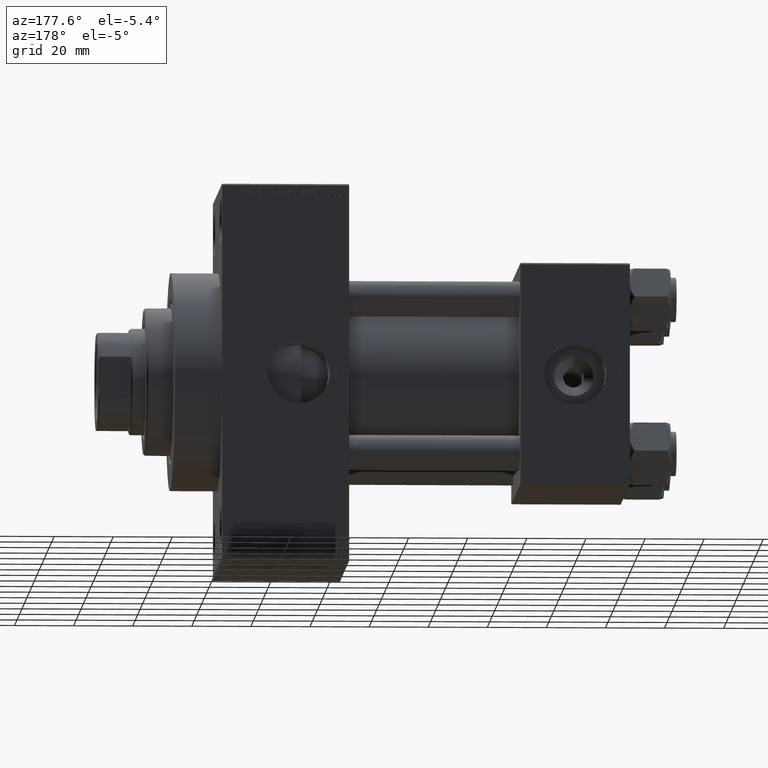
[diagram: clean part render]
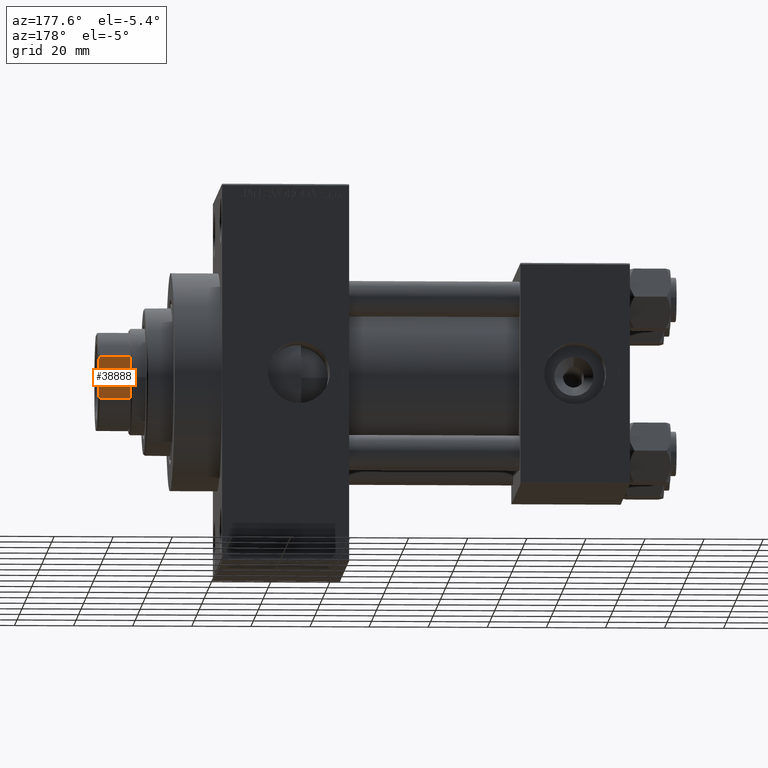
[diagram: same view with one face highlighted and labeled with its STEP entity id]
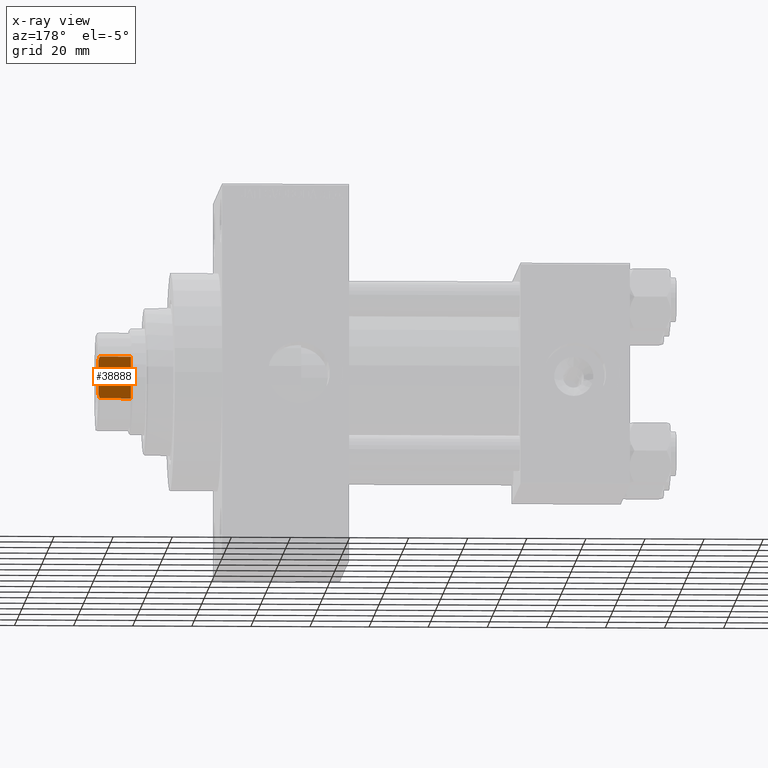
[diagram: x-ray of the same camera — body ghosted, the highlighted face saturated]
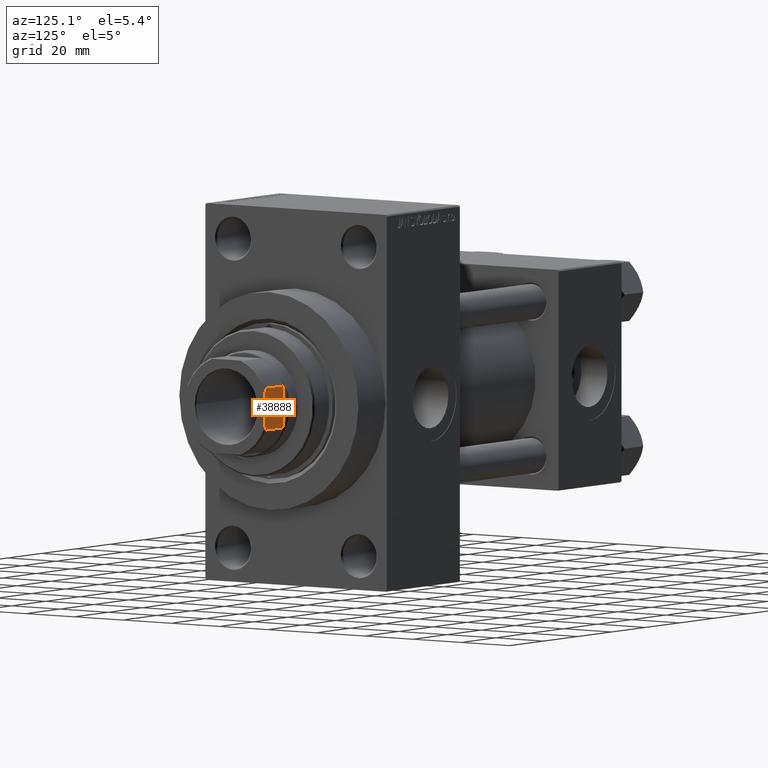
[diagram: same view with one face highlighted and labeled with its STEP entity id]
A machine part, auxiliary view. The second image highlights one B-rep face of the part: STEP entity #38888.
The next image is the same camera in x-ray: the body ghosted, the highlighted face saturated — about 0% of this face is hidden behind the body in this view.
A second angle (auxiliary view) of the same face is appended — the face is thin or edge-on in the first view.
In plain terms, the highlighted planar face has unit normal (0, -1, -0).
Its self-contained STEP definition (entity closure, byte-faithful):
#1277 = VERTEX_POINT ( 'NONE', #18591 ) ;
#1459 = CARTESIAN_POINT ( 'NONE',  ( -16.00000000000000000, -5.744562646538022399, 142.0000000000000284 ) ) ;
#1798 = ORIENTED_EDGE ( 'NONE', *, *, #37560, .T. ) ;
#2052 = ORIENTED_EDGE ( 'NONE', *, *, #43776, .F. ) ;
#2448 = AXIS2_PLACEMENT_3D ( 'NONE', #6797, #24186, #9145 ) ;
#2465 = VECTOR ( 'NONE', #22312, 1000.000000000000000 ) ;
#3297 = VECTOR ( 'NONE', #46433, 1000.000000000000000 ) ;
#3467 = CARTESIAN_POINT ( 'NONE',  ( -16.00000000000000000, 16.00000000000000000, 142.0000000000000284 ) ) ;
#5081 = LINE ( 'NONE', #27891, #3297 ) ;
#5808 = VERTEX_POINT ( 'NONE', #23599 ) ;
#6797 = CARTESIAN_POINT ( 'NONE',  ( -16.00000000000000000, 16.00000000000000000, 142.0000000000000284 ) ) ;
#7228 = EDGE_LOOP ( 'NONE', ( #31227, #7642, #2052, #1798, #41202, #20661 ) ) ;
#7642 = ORIENTED_EDGE ( 'NONE', *, *, #14118, .T. ) ;
#9145 = DIRECTION ( 'NONE',  ( -0.000000000000000000, 0.000000000000000000, -1.000000000000000000 ) ) ;
#10364 = VERTEX_POINT ( 'NONE', #16768 ) ;
#11036 = EDGE_CURVE ( 'NONE', #25616, #10364, #33369, .T. ) ;
#14118 = EDGE_CURVE ( 'NONE', #10364, #19118, #21025, .T. ) ;
#14556 = CARTESIAN_POINT ( 'NONE',  ( -16.00000000000000000, -7.088723439378919799, -0.001000000000001000089 ) ) ;
#16768 = CARTESIAN_POINT ( 'NONE',  ( -16.00000000000000000, -7.088723439378919799, 141.5000000000000284 ) ) ;
#17330 = DIRECTION ( 'NONE',  ( 0.000000000000000000, -1.000000000000000000, 0.000000000000000000 ) ) ;
#17766 = EDGE_CURVE ( 'NONE', #5808, #25616, #21576, .T. ) ;
#17767 = CARTESIAN_POINT ( 'NONE',  ( -16.00000000000000000, 6.645462757301157097, 141.6795515649600361 ) ) ;
#18591 = CARTESIAN_POINT ( 'NONE',  ( -16.00000000000000000, 5.744562646538085460, 142.0000000000000284 ) ) ;
#19118 = VERTEX_POINT ( 'NONE', #48539 ) ;
#19126 = VERTEX_POINT ( 'NONE', #29247 ) ;
#20661 = ORIENTED_EDGE ( 'NONE', *, *, #17766, .T. ) ;
#21025 = B_SPLINE_CURVE_WITH_KNOTS ( 'NONE', 3,
 ( #47069, #28023, #35814, #1459 ),
 .UNSPECIFIED., .F., .F.,
 ( 4, 4 ),
 ( 0.000000000000000000, 0.001434143729551075504 ),
 .UNSPECIFIED. ) ;
#21266 = CARTESIAN_POINT ( 'NONE',  ( -16.00000000000000000, 6.197659614356096469, 141.8468915343184165 ) ) ;
#21576 = LINE ( 'NONE', #40626, #37970 ) ;
#22312 = DIRECTION ( 'NONE',  ( -0.000000000000000000, -0.000000000000000000, 1.000000000000000000 ) ) ;
#23599 = CARTESIAN_POINT ( 'NONE',  ( -15.99999999999999645, 7.088723439378926905, 131.0000000000000284 ) ) ;
#24186 = DIRECTION ( 'NONE',  ( 1.000000000000000000, 0.000000000000000000, -0.000000000000000000 ) ) ;
#25616 = VERTEX_POINT ( 'NONE', #39383 ) ;
#26273 = DIRECTION ( 'NONE',  ( 0.000000000000000000, -1.000000000000000000, 0.000000000000000000 ) ) ;
#27891 = CARTESIAN_POINT ( 'NONE',  ( -15.99999999999999645, 7.088723439378923352, -0.001000000000001000089 ) ) ;
#28023 = CARTESIAN_POINT ( 'NONE',  ( -16.00000000000000000, -6.645462757301120682, 141.6795515649600077 ) ) ;
#29247 = CARTESIAN_POINT ( 'NONE',  ( -15.99999999999999645, 7.088723439378923352, 141.5000000000000284 ) ) ;
#31227 = ORIENTED_EDGE ( 'NONE', *, *, #11036, .T. ) ;
#32209 = FACE_OUTER_BOUND ( 'NONE', #7228, .T. ) ;
#32791 = B_SPLINE_CURVE_WITH_KNOTS ( 'NONE', 3,
 ( #36074, #21266, #17767, #33068 ),
 .UNSPECIFIED., .F., .F.,
 ( 4, 4 ),
 ( 8.673617379884035472E-19, 0.001434143729551021944 ),
 .UNSPECIFIED. ) ;
#33068 = CARTESIAN_POINT ( 'NONE',  ( -15.99999999999999645, 7.088723439378923352, 141.5000000000000284 ) ) ;
#33369 = LINE ( 'NONE', #14556, #2465 ) ;
#35814 = CARTESIAN_POINT ( 'NONE',  ( -16.00000000000000000, -6.197659614356052060, 141.8468915343184165 ) ) ;
#36074 = CARTESIAN_POINT ( 'NONE',  ( -16.00000000000000000, 5.744562646538085460, 142.0000000000000284 ) ) ;
#36828 = LINE ( 'NONE', #3467, #40106 ) ;
#37560 = EDGE_CURVE ( 'NONE', #1277, #19126, #32791, .T. ) ;
#37970 = VECTOR ( 'NONE', #17330, 1000.000000000000000 ) ;
#38888 = ADVANCED_FACE ( 'NONE', ( #32209 ), #43481, .F. ) ;
#39383 = CARTESIAN_POINT ( 'NONE',  ( -16.00000000000000000, -7.088723439378919799, 131.0000000000000284 ) ) ;
#40106 = VECTOR ( 'NONE', #26273, 1000.000000000000000 ) ;
#40626 = CARTESIAN_POINT ( 'NONE',  ( -16.00000000000000000, 16.00000000000000000, 131.0000000000000000 ) ) ;
#41202 = ORIENTED_EDGE ( 'NONE', *, *, #44550, .F. ) ;
#43481 = PLANE ( 'NONE',  #2448 ) ;
#43776 = EDGE_CURVE ( 'NONE', #1277, #19118, #36828, .T. ) ;
#44550 = EDGE_CURVE ( 'NONE', #5808, #19126, #5081, .T. ) ;
#46433 = DIRECTION ( 'NONE',  ( -0.000000000000000000, -0.000000000000000000, 1.000000000000000000 ) ) ;
#47069 = CARTESIAN_POINT ( 'NONE',  ( -16.00000000000000000, -7.088723439378919799, 141.5000000000000284 ) ) ;
#48539 = CARTESIAN_POINT ( 'NONE',  ( -16.00000000000000000, -5.744562646538022399, 142.0000000000000284 ) ) ;